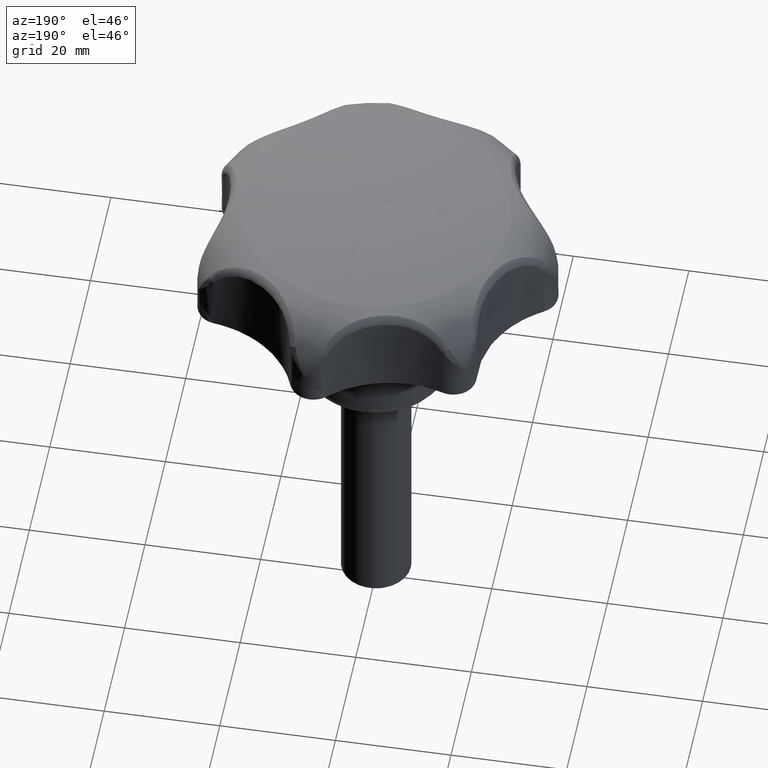
[diagram: clean part render]
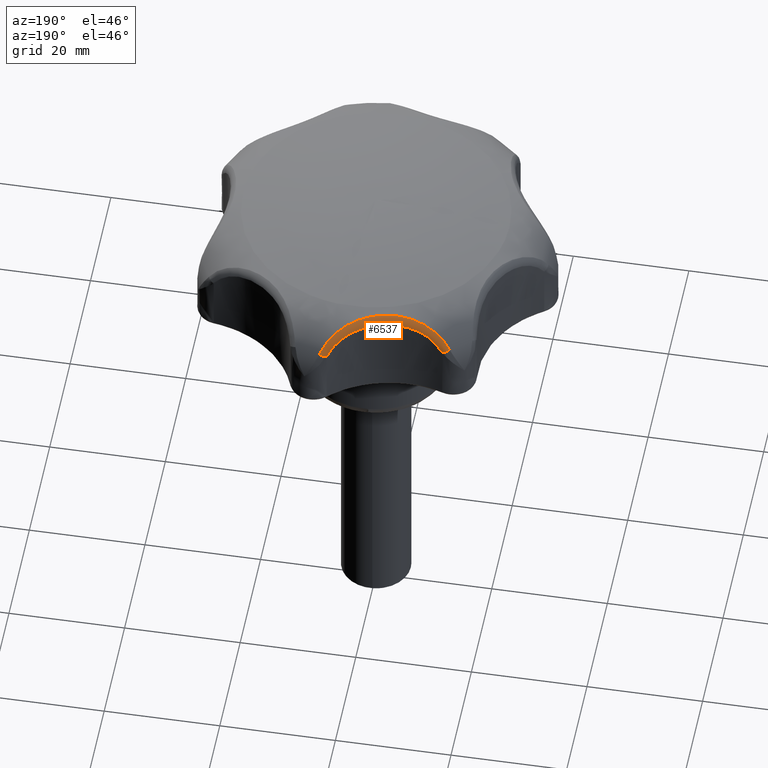
[diagram: same view with one face highlighted and labeled with its STEP entity id]
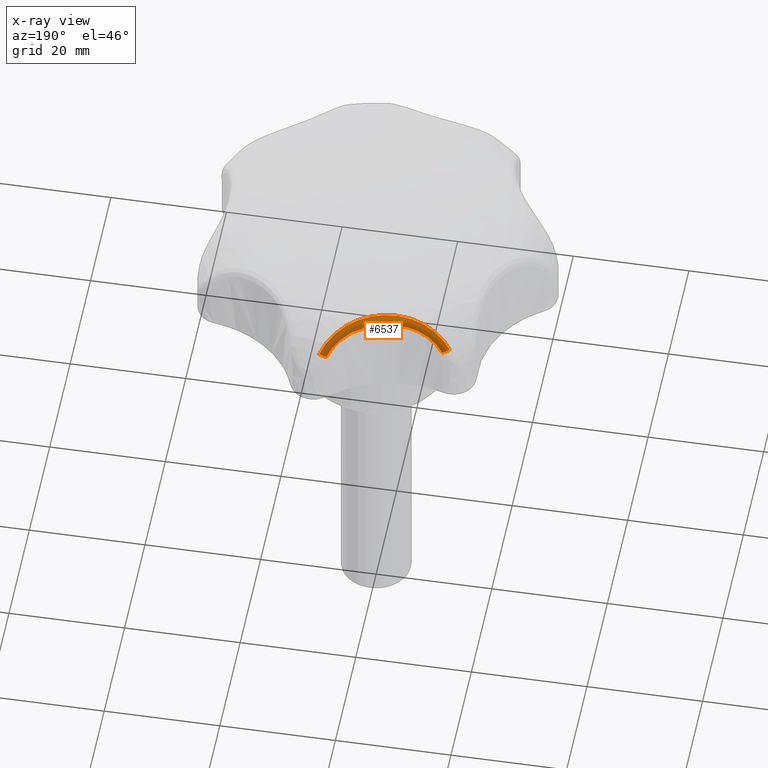
[diagram: x-ray of the same camera — body ghosted, the highlighted face saturated]
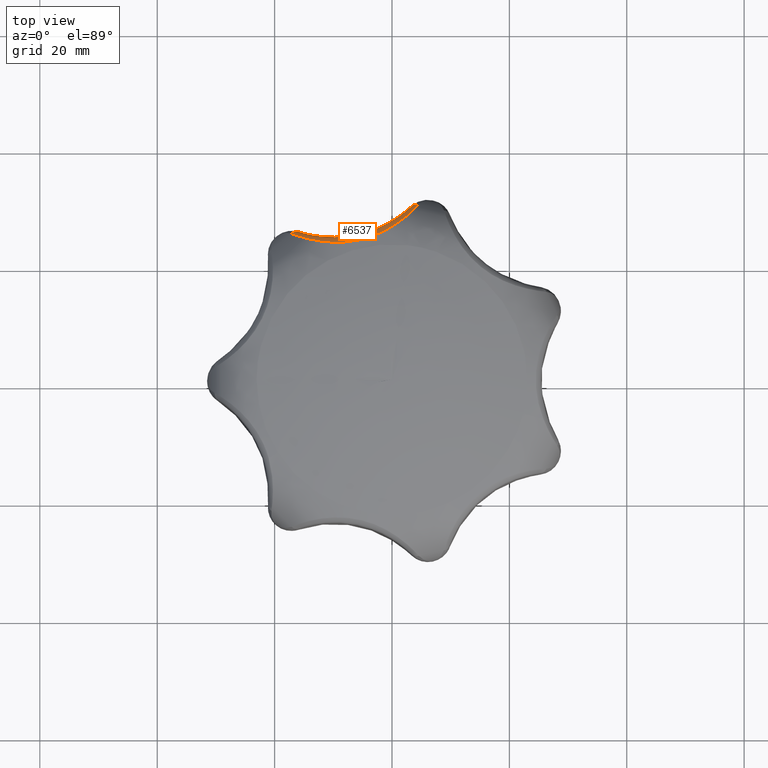
[diagram: same view with one face highlighted and labeled with its STEP entity id]
A machine part, auxiliary view. The second image highlights one B-rep face of the part: STEP entity #6537.
The next image is the same camera in x-ray: the body ghosted, the highlighted face saturated — about 0% of this face is hidden behind the body in this view.
A second angle (top view) of the same face is appended — the face is thin or edge-on in the first view.
In plain terms, the highlighted face is a freeform B-spline surface patch.
Its self-contained STEP definition (entity closure, byte-faithful):
#1885=CARTESIAN_POINT('',(4.580959115679450,29.922725782818549,31.738454685005049));
#1886=VERTEX_POINT('',#1885);
#1910=CARTESIAN_POINT('',(-17.110286079850251,24.971841096677949,31.738453637142751));
#1911=VERTEX_POINT('',#1910);
#1912=CARTESIAN_POINT('',(4.580959115679450,29.922725782818549,31.738454685005049));
#1913=CARTESIAN_POINT('',(4.373405402721688,29.701180805645631,32.222791186861450));
#1914=CARTESIAN_POINT('',(4.135369915467874,29.455164578822579,32.672248195697001));
#1915=CARTESIAN_POINT('',(3.730130535677279,29.057374964603412,33.297505634319172));
#1916=CARTESIAN_POINT('',(3.586980716047909,28.919962316116099,33.497731366012033));
#1917=CARTESIAN_POINT('',(3.359514040131987,28.707498492574469,33.785921638137019));
#1918=CARTESIAN_POINT('',(3.281565974815213,28.635619395591888,33.879958723523409));
#1919=CARTESIAN_POINT('',(3.121285693640851,28.489891093219079,34.063986325178867));
#1920=CARTESIAN_POINT('',(3.038763641992875,28.415874986114421,34.154170398397703));
#1921=CARTESIAN_POINT('',(2.617268148520599,28.043395005293089,34.592454043517151));
#1922=CARTESIAN_POINT('',(2.253777373764355,27.739503832393510,34.901046276151902));
#1923=CARTESIAN_POINT('',(1.668117147017713,27.283574026846729,35.308920943269882));
#1924=CARTESIAN_POINT('',(1.466142646941343,27.131574059072271,35.435678615033233));
#1925=CARTESIAN_POINT('',(1.152788991889443,26.904620916285172,35.612817278312427));
#1926=CARTESIAN_POINT('',(1.046604916147954,26.829144536971121,35.669696219714787));
#1927=CARTESIAN_POINT('',(0.830717300506641,26.678725681206821,35.779243834940353));
#1928=CARTESIAN_POINT('',(0.721153329417515,26.603887661086180,35.831828681925209));
#1929=CARTESIAN_POINT('',(0.168985444958212,26.234472396862611,36.082640269269177));
#1930=CARTESIAN_POINT('',(-0.289949687678607,25.951892884071128,36.246453567904183));
#1931=CARTESIAN_POINT('',(-1.242054079008384,25.420322161726350,36.516099519509332));
#1932=CARTESIAN_POINT('',(-1.735222513119557,25.171319648016180,36.621912962572253));
#1933=CARTESIAN_POINT('',(-2.373709359757937,24.885781192351011,36.724932639838343));
#1934=CARTESIAN_POINT('',(-2.502511055516082,24.829959328057878,36.744063499834219));
#1935=CARTESIAN_POINT('',(-2.762351594128752,24.721006157193059,36.779509378436110));
#1936=CARTESIAN_POINT('',(-2.893606196824412,24.667793820071399,36.795846152309238));
#1937=CARTESIAN_POINT('',(-3.288381105268650,24.513288646538221,36.840542370866103));
#1938=CARTESIAN_POINT('',(-3.553321668526895,24.416930742207850,36.864681754621941));
#1939=CARTESIAN_POINT('',(-4.353435038343453,24.147986924294049,36.921955817866099));
#1940=CARTESIAN_POINT('',(-4.893899452228997,23.995546152114080,36.940195020044719));
#1941=CARTESIAN_POINT('',(-5.989070642270838,23.745129053311469,36.940483492922837));
#1942=CARTESIAN_POINT('',(-6.543776936752050,23.647151422334321,36.922542590825422));
#1943=CARTESIAN_POINT('',(-7.246150055223709,23.558901338421830,36.874746929927582));
#1944=CARTESIAN_POINT('',(-7.387220563986161,23.542947735974241,36.863885538983162));
#1945=CARTESIAN_POINT('',(-7.669434590083734,23.514541590269960,36.839507358147671));
#1946=CARTESIAN_POINT('',(-7.810549142700126,23.502087317370449,36.825996332060733));
#1947=CARTESIAN_POINT('',(-8.233887707666996,23.469876842362169,36.781300146075402));
#1948=CARTESIAN_POINT('',(-8.516431892917257,23.455288693945882,36.745894102487910));
#1949=CARTESIAN_POINT('',(-9.357016033079200,23.431423994436301,36.622126246796427));
#1950=CARTESIAN_POINT('',(-9.910098760967422,23.441805347283491,36.516179241052328));
#1951=CARTESIAN_POINT('',(-10.999283489608491,23.507678273057032,36.246348998262157));
#1952=CARTESIAN_POINT('',(-11.535388985404170,23.563180844515450,36.082482091547952));
#1953=CARTESIAN_POINT('',(-12.192736236893641,23.656378877473500,35.831825685236240));
#1954=CARTESIAN_POINT('',(-12.323748287865699,23.676240144834171,35.779312690968332));
#1955=CARTESIAN_POINT('',(-12.583581274189781,23.718100742377612,35.669743338788066));
#1956=CARTESIAN_POINT('',(-12.711992762754130,23.740029948500180,35.612867212204897));
#1957=CARTESIAN_POINT('',(-13.092670526093620,23.808525043342762,35.435789017438672));
#1958=CARTESIAN_POINT('',(-13.340382830436679,23.857795921813342,35.309140680925069));
#1959=CARTESIAN_POINT('',(-14.064879643038241,24.014226442332301,34.901900000533949));
#1960=CARTESIAN_POINT('',(-14.523096907649460,24.129998646190629,34.594129191536112));
#1961=CARTESIAN_POINT('',(-15.062645434103720,24.282094450652639,34.157806179170983));
#1962=CARTESIAN_POINT('',(-15.169081764248659,24.312940989398200,34.067778743141950));
#1963=CARTESIAN_POINT('',(-15.377624771311620,24.374924546685449,33.883159173984737));
#1964=CARTESIAN_POINT('',(-15.479445970954400,24.405972891009920,33.788836782136549));
#1965=CARTESIAN_POINT('',(-15.777656833337019,24.499001685389061,33.499832461952053));
#1966=CARTESIAN_POINT('',(-15.966802457850450,24.560863063775979,33.299119791531162));
#1967=CARTESIAN_POINT('',(-16.505739952590289,24.743824338070080,32.672648444080977));
#1968=CARTESIAN_POINT('',(-16.827211453223981,24.862308573861512,32.222706658358668));
#1969=CARTESIAN_POINT('',(-17.110286079850251,24.971841096677949,31.738453637142751));
#1970=B_SPLINE_CURVE_WITH_KNOTS('',3,(#1912,#1913,#1914,#1915,#1916,#1917,#1918,#1919,#1920,#1921,#1922,#1923,#1924,#1925,#1926,#1927,#1928,#1929,#1930,#1931,#1932,#1933,#1934,#1935,#1936,#1937,#1938,#1939,#1940,#1941,#1942,#1943,#1944,#1945,#1946,#1947,#1948,#1949,#1950,#1951,#1952,#1953,#1954,#1955,#1956,#1957,#1958,#1959,#1960,#1961,#1962,#1963,#1964,#1965,#1966,#1967,#1968,#1969),.UNSPECIFIED.,.F.,.U.,(4,2,2,2,2,2,2,2,2,2,2,2,2,2,2,2,2,2,2,2,2,2,2,2,2,2,2,2,4),(0.0,0.062500000000002,0.093750000000003,0.109375000000003,0.125000000000003,0.187500000000004,0.218750000000004,0.234375000000004,0.250000000000004,0.312500000000004,0.375000000000004,0.390625000000004,0.406250000000004,0.437500000000004,0.500000000000003,0.562500000000003,0.578125000000003,0.593750000000002,0.625000000000002,0.687500000000002,0.750000000000002,0.765625000000001,0.781250000000001,0.812500000000001,0.875000000000001,0.890625000000001,0.906250000000001,0.937500000000000,1.0),.UNSPECIFIED.);
#1971=EDGE_CURVE('',#1886,#1911,#1970,.T.);
#6191=CARTESIAN_POINT('',(-15.883843407673851,25.296025679275999,31.049571760227249));
#6192=VERTEX_POINT('',#6191);
#6193=CARTESIAN_POINT('',(-17.110286079850258,24.971841096677959,31.738453637142761));
#6194=CARTESIAN_POINT('',(-16.539223188989013,25.513951511906193,31.497791159205448));
#6195=CARTESIAN_POINT('',(-15.883843407673851,25.296025679275999,31.049571760227249));
#6203=(BOUNDED_CURVE()B_SPLINE_CURVE(2,(#6193,#6194,#6195),.UNSPECIFIED.,.F.,.U.)CURVE()GEOMETRIC_REPRESENTATION_ITEM()QUASI_UNIFORM_CURVE()RATIONAL_B_SPLINE_CURVE((1.0,0.876621322523646,1.0))REPRESENTATION_ITEM(''));
#6204=EDGE_CURVE('',#1911,#6192,#6203,.T.);
#6239=CARTESIAN_POINT('',(3.376801863414312,29.722857864167878,30.938720916930468));
#6240=CARTESIAN_POINT('',(3.361438112145495,29.707975671120316,30.974284759333639));
#6241=CARTESIAN_POINT('',(3.346074363821254,29.693093480925036,31.009848594920726));
#6242=CARTESIAN_POINT('',(3.138664037821187,29.492184181003136,31.489959735591430));
#6243=CARTESIAN_POINT('',(2.917026940001454,29.285281898693214,31.898247234499536));
#6244=CARTESIAN_POINT('',(2.538597126902710,28.952190825329374,32.460621337014153));
#6245=CARTESIAN_POINT('',(2.404750621971879,28.837344322357424,32.639698784648303));
#6246=CARTESIAN_POINT('',(2.120993805087760,28.601271648872643,32.981430634905443));
#6247=CARTESIAN_POINT('',(1.970248342320318,28.479403740421073,33.144845974673508));
#6248=CARTESIAN_POINT('',(1.499847860292878,28.111652569773149,33.603966943653766));
#6249=CARTESIAN_POINT('',(1.162711608891911,27.864002779892274,33.868943427878577));
#6250=CARTESIAN_POINT('',(0.622496918076531,27.496283808611459,34.214602342227700));
#6251=CARTESIAN_POINT('',(0.436663146484711,27.374321400678777,34.321154485937008));
#6252=CARTESIAN_POINT('',(0.053518614759187,27.132736627226933,34.518280543469359));
#6253=CARTESIAN_POINT('',(-0.143856631399803,27.013127052576689,34.608781335955854));
#6254=CARTESIAN_POINT('',(-1.143281627649571,26.432454593305479,35.018842092736875));
#6255=CARTESIAN_POINT('',(-1.994809253729029,26.015925920370432,35.220993508540538));
#6256=CARTESIAN_POINT('',(-3.341517642300987,25.482571225171867,35.414666141169022));
#6257=CARTESIAN_POINT('',(-3.801715693564263,25.320365067193094,35.460107039982816));
#6258=CARTESIAN_POINT('',(-4.725051155209408,25.034159902220946,35.519141806225015));
#6259=CARTESIAN_POINT('',(-5.190705940457502,24.909102393809810,35.533134622795558));
#6260=CARTESIAN_POINT('',(-6.129898317581181,24.694708889879539,35.533156569104051));
#6261=CARTESIAN_POINT('',(-6.603435194511769,24.605373486705403,35.519184319235656));
#6262=CARTESIAN_POINT('',(-7.558417105659056,24.462679688541872,35.460299416332219));
#6263=CARTESIAN_POINT('',(-8.042046041418670,24.409184058216230,35.415098199717100));
#6264=CARTESIAN_POINT('',(-9.489394031411365,24.304991701949767,35.221319218261513));
#6265=CARTESIAN_POINT('',(-10.438115329406839,24.310871931218259,35.018923475677120));
#6266=CARTESIAN_POINT('',(-11.590136158216771,24.400331370690193,34.609088170991022));
#6267=CARTESIAN_POINT('',(-11.819721465942152,24.422432389979100,34.518669673583652));
#6268=CARTESIAN_POINT('',(-12.269807397732292,24.473837796250329,34.321569797913341));
#6269=CARTESIAN_POINT('',(-12.490066389586946,24.503071780410146,34.215082545597333));
#6270=CARTESIAN_POINT('',(-13.135728713313584,24.599853235234544,33.869868665313348));
#6271=CARTESIAN_POINT('',(-13.546078641405000,24.676514105394073,33.605511602138307));
#6272=CARTESIAN_POINT('',(-14.127672011772026,24.803239545670458,33.148340252644509));
#6273=CARTESIAN_POINT('',(-14.316746035770574,24.847664046728251,32.984896835061434));
#6274=CARTESIAN_POINT('',(-14.676382541679482,24.937565709669709,32.642059109458302));
#6275=CARTESIAN_POINT('',(-14.847402533923439,24.983107820560321,32.462473825176758));
#6276=CARTESIAN_POINT('',(-15.334239271580174,25.119363633817610,31.898802654407550));
#6277=CARTESIAN_POINT('',(-15.624024914896099,25.209726427608203,31.489948068913204));
#6278=CARTESIAN_POINT('',(-15.898059542862216,25.300745192382777,31.009848935642783));
#6279=CARTESIAN_POINT('',(-15.918358470791340,25.307487345226999,30.974285920204064));
#6280=CARTESIAN_POINT('',(-15.938657402613345,25.314229499364227,30.938722897945233));
#6281=CARTESIAN_POINT('',(3.379117594736117,29.725117606943247,30.940748730877164));
#6282=CARTESIAN_POINT('',(3.363748568658578,29.710225274614320,30.976329523508806));
#6283=CARTESIAN_POINT('',(3.348379544054800,29.695332943713449,31.011910312728595));
#6284=CARTESIAN_POINT('',(3.140897844320635,29.494286604861347,31.492250660637485));
#6285=CARTESIAN_POINT('',(2.919184132105321,29.287246911867928,31.900733700360306));
#6286=CARTESIAN_POINT('',(2.540624085457175,28.953943457273173,32.463380412864019));
#6287=CARTESIAN_POINT('',(2.406731686402144,28.839025201642755,32.642545134219610));
#6288=CARTESIAN_POINT('',(2.122878251376964,28.602808481711516,32.984444970541269));
#6289=CARTESIAN_POINT('',(1.972081820492832,28.480867955637542,33.147941366436193));
#6290=CARTESIAN_POINT('',(1.501524321188250,28.112903780882920,33.607292511756881));
#6291=CARTESIAN_POINT('',(1.164277957561752,27.865118384885214,33.872405672676372));
#6292=CARTESIAN_POINT('',(0.623894215335337,27.497210946787259,34.218249582563814));
#6293=CARTESIAN_POINT('',(0.438003638399145,27.375188363393377,34.324859827721177));
#6294=CARTESIAN_POINT('',(0.054745214366752,27.133488952595577,34.522095701005831));
#6295=CARTESIAN_POINT('',(-0.142687094897773,27.013824945353978,34.612648175665591));
#6296=CARTESIAN_POINT('',(-1.142389965781312,26.432900867893693,35.022946973607120));
#6297=CARTESIAN_POINT('',(-1.994124485945396,26.016226796475134,35.225237247212505));
#6298=CARTESIAN_POINT('',(-3.341108594178330,25.482718587377995,35.419050955724948));
#6299=CARTESIAN_POINT('',(-3.801392966373362,25.320471833627494,35.464527170728914));
#6300=CARTESIAN_POINT('',(-4.724892539426112,25.034202376791459,35.523608338049883));
#6301=CARTESIAN_POINT('',(-5.190626019023181,24.909120640284666,35.537612719686898));
#6302=CARTESIAN_POINT('',(-6.129978054295770,24.694690685571477,35.537634683765823));
#6303=CARTESIAN_POINT('',(-6.603596296971525,24.605342968625980,35.523650886548744));
#6304=CARTESIAN_POINT('',(-7.558753730523423,24.462635874188972,35.464719696799222));
#6305=CARTESIAN_POINT('',(-8.042477729831704,24.409139327955675,35.419483336672762));
#6306=CARTESIAN_POINT('',(-9.490141185351879,24.304965597303564,35.225563172578028));
#6307=CARTESIAN_POINT('',(-10.439112206421781,24.310887117189232,35.023028415907611));
#6308=CARTESIAN_POINT('',(-11.591492417887302,24.400452626044359,34.612955187603738));
#6309=CARTESIAN_POINT('',(-11.821152701262490,24.422577904929927,34.522485051271545));
#6310=CARTESIAN_POINT('',(-12.271390993025399,24.474037170306527,34.325275367651393));
#6311=CARTESIAN_POINT('',(-12.491727237009398,24.503300704957539,34.218730046980617));
#6312=CARTESIAN_POINT('',(-13.137623399341075,24.600178488384266,33.873331396680747));
#6313=CARTESIAN_POINT('',(-13.548131027322812,24.676913581270870,33.608837970610551));
#6314=CARTESIAN_POINT('',(-14.129957506285521,24.803762307735148,33.151437387361561));
#6315=CARTESIAN_POINT('',(-14.319109086225302,24.848230148823351,32.987912882396081));
#6316=CARTESIAN_POINT('',(-14.678895759238008,24.938219986069942,32.644906610356649));
#6317=CARTESIAN_POINT('',(-14.849988479866679,24.983806969830734,32.465233800981039));
#6318=CARTESIAN_POINT('',(-15.337035274819881,25.120197964881573,31.901289382855438));
#6319=CARTESIAN_POINT('',(-15.626949715390529,25.210651435880187,31.492238988086989));
#6320=CARTESIAN_POINT('',(-15.901108104913106,25.301762698294130,31.011910653651164));
#6321=CARTESIAN_POINT('',(-15.921416186286319,25.308511698149072,30.976330685011234));
#6322=CARTESIAN_POINT('',(-15.941724269608105,25.315260698651567,30.940750712957389));
#6323=CARTESIAN_POINT('',(3.880756051529192,30.214627710256373,31.380017936807938));
#6324=CARTESIAN_POINT('',(3.864249601020215,30.197544064117039,31.419275138290995));
#6325=CARTESIAN_POINT('',(3.847742809659843,30.180460065207448,31.458533150419086));
#6326=CARTESIAN_POINT('',(3.624867747418677,29.949791533863191,31.988595698947879));
#6327=CARTESIAN_POINT('',(3.386770136668359,29.713176831429866,32.439692022724252));
#6328=CARTESIAN_POINT('',(2.980632103398300,29.334401215558152,33.062314956132425));
#6329=CARTESIAN_POINT('',(2.837046218348657,29.204135377700290,33.260811539294799));
#6330=CARTESIAN_POINT('',(2.532843575902891,28.937149755928338,33.640220141343143));
#6331=CARTESIAN_POINT('',(2.371333074424116,28.799709908575398,33.821982138333318));
#6332=CARTESIAN_POINT('',(1.867779490276558,28.386254944536475,34.333826910073981));
#6333=CARTESIAN_POINT('',(1.507432145381937,28.109524073511285,34.630910994319478));
#6334=CARTESIAN_POINT('',(0.931538155973954,27.701339624578271,35.021265105842630));
#6335=CARTESIAN_POINT('',(0.733669352995161,27.566410069235609,35.142128857583195));
#6336=CARTESIAN_POINT('',(0.326318672154420,27.300056429450983,35.366784968632153));
#6337=CARTESIAN_POINT('',(0.116772348495737,27.168651127542070,35.470499193595792));
#6338=CARTESIAN_POINT('',(-0.942535697781764,26.532927441112331,35.943001975110697));
#6339=CARTESIAN_POINT('',(-1.839254288226444,26.084274305330311,36.185020494755975));
#6340=CARTESIAN_POINT('',(-3.247646530429222,25.516388894458693,36.420922850130779));
#6341=CARTESIAN_POINT('',(-3.727445301008483,25.344935618472476,36.477327946409964));
#6342=CARTESIAN_POINT('',(-4.688409385656716,25.043971936007161,36.550953561827534));
#6343=CARTESIAN_POINT('',(-5.172224924702030,24.913321704834580,36.568648811246774));
#6344=CARTESIAN_POINT('',(-6.148336646667805,24.690499323125668,36.568676432803109));
#6345=CARTESIAN_POINT('',(-6.640651524479291,24.598323495562521,36.551007441009205));
#6346=CARTESIAN_POINT('',(-7.635886752733931,24.452596409451989,36.477567015969804));
#6347=CARTESIAN_POINT('',(-8.141115234590473,24.398918805112856,36.421453633459876));
#6348=CARTESIAN_POINT('',(-9.659123213742351,24.299061571606913,36.185408219108602));
#6349=CARTESIAN_POINT('',(-10.662549988264114,24.314290866713076,35.943100527053552));
#6350=CARTESIAN_POINT('',(-11.892378184319311,24.427353086892257,35.470851564381505));
#6351=CARTESIAN_POINT('',(-12.138035822929156,24.454795689953489,35.367229989364830));
#6352=CARTESIAN_POINT('',(-12.620679370183549,24.518012446587250,35.142600631172648));
#6353=CARTESIAN_POINT('',(-12.857400072453647,24.553703581954732,35.021809339562914));
#6354=CARTESIAN_POINT('',(-13.552714181493931,24.671435457797880,34.631952007599601));
#6355=CARTESIAN_POINT('',(-13.996521655736652,24.764188219963952,34.335559215706169));
#6356=CARTESIAN_POINT('',(-14.627649146623046,24.917599513620495,33.825872634777234));
#6357=CARTESIAN_POINT('',(-14.833205013367708,24.971389085552886,33.644072232575887));
#6358=CARTESIAN_POINT('',(-15.224805991177355,25.080339071696542,33.263428421406218));
#6359=CARTESIAN_POINT('',(-15.411343514320412,25.135577722735135,33.064367095606670));
#6360=CARTESIAN_POINT('',(-15.943087869279946,25.301044860464653,32.440304576454274));
#6361=CARTESIAN_POINT('',(-16.260628382753296,25.411061005766992,31.988582794049275));
#6362=CARTESIAN_POINT('',(-16.561507612475413,25.522181502825870,31.458533531826237));
#6363=CARTESIAN_POINT('',(-16.583791666294932,25.530411433284016,31.419276430904759));
#6364=CARTESIAN_POINT('',(-16.606075259681912,25.538641193695540,31.380020141112499));
#6365=CARTESIAN_POINT('',(4.637251417760416,29.978256515989962,31.615828445138874));
#6366=CARTESIAN_POINT('',(4.619582926376670,29.959394596505245,31.657055553118759));
#6367=CARTESIAN_POINT('',(4.601914436592810,29.940532678728474,31.698282657365485));
#6368=CARTESIAN_POINT('',(4.363389967503419,29.685896941393395,32.254848231041919));
#6369=CARTESIAN_POINT('',(4.109123281055338,29.423620083395221,32.728151019828282));
#6370=CARTESIAN_POINT('',(3.676720085259820,29.001421648493334,33.380078632025928));
#6371=CARTESIAN_POINT('',(3.524040729852147,28.855860127552550,33.587672481160418));
#6372=CARTESIAN_POINT('',(3.201023013299609,28.556712568040890,33.983821909336754));
#6373=CARTESIAN_POINT('',(3.029739053412237,28.402313907502560,34.173259489974647));
#6374=CARTESIAN_POINT('',(2.496409131001753,27.936591691758743,34.705490083497367));
#6375=CARTESIAN_POINT('',(2.115651563059586,27.623210361596804,35.012660909231627));
#6376=CARTESIAN_POINT('',(1.508299088587441,27.158854631618663,35.413362808103649));
#6377=CARTESIAN_POINT('',(1.299799100323470,27.005006187576097,35.536882097653709));
#6378=CARTESIAN_POINT('',(0.870837253280803,26.700733067310090,35.765398108420698));
#6379=CARTESIAN_POINT('',(0.650308343166299,26.550327824077474,35.870310081798003));
#6380=CARTESIAN_POINT('',(-0.464149284624428,25.821719873940349,36.345664162169271));
#6381=CARTESIAN_POINT('',(-1.406416624584093,25.304219915954892,36.580009238587010));
#6382=CARTESIAN_POINT('',(-2.891366721719501,24.656351291243315,36.804525392065017));
#6383=CARTESIAN_POINT('',(-3.398057165358783,24.462233786470730,36.857203316363702));
#6384=CARTESIAN_POINT('',(-4.414966500781141,24.126461261460612,36.925639813522601));
#6385=CARTESIAN_POINT('',(-4.927971221668465,23.983511695650574,36.941861289473124));
#6386=CARTESIAN_POINT('',(-5.964899978986616,23.746799604407062,36.941886730976798));
#6387=CARTESIAN_POINT('',(-6.488831347215319,23.653035898323669,36.925689097900211));
#6388=CARTESIAN_POINT('',(-7.549495121226701,23.514361841432869,36.857426330403079));
#6389=CARTESIAN_POINT('',(-8.088684516921630,23.469382146350597,36.805026255975811));
#6390=CARTESIAN_POINT('',(-9.710549011273619,23.408388076193390,36.580386811857231));
#6391=CARTESIAN_POINT('',(-10.784947446608490,23.465932006087392,36.345758508098911));
#6392=CARTESIAN_POINT('',(-12.104733350271241,23.638727482756078,35.870665776870673));
#6393=CARTESIAN_POINT('',(-12.368518071969232,23.678514677527250,35.765849202784658));
#6394=CARTESIAN_POINT('',(-12.887089365416950,23.766520924250724,35.537363543015161));
#6395=CARTESIAN_POINT('',(-13.141589445825465,23.814639170137326,35.413919478687156));
#6396=CARTESIAN_POINT('',(-13.889567380060921,23.969294023599982,35.013733482318429));
#6397=CARTESIAN_POINT('',(-14.367593557081856,24.086161005820504,34.707280717025682));
#6398=CARTESIAN_POINT('',(-15.048069578368366,24.273639899030883,34.177310198194462));
#6399=CARTESIAN_POINT('',(-15.269819142607501,24.338491395653890,33.987840066805795));
#6400=CARTESIAN_POINT('',(-15.692457682726927,24.468346509846295,33.590408664421588));
#6401=CARTESIAN_POINT('',(-15.893876086533913,24.533455791258515,33.382226111611899));
#6402=CARTESIAN_POINT('',(-16.468242708600744,24.726728731042883,32.728794882806149));
#6403=CARTESIAN_POINT('',(-16.811515098008783,24.852867829664081,32.254834389880457));
#6404=CARTESIAN_POINT('',(-17.136892137947509,24.978791565263474,31.698283077694242));
#6405=CARTESIAN_POINT('',(-17.160994202303577,24.988119273143372,31.657056949549826));
#6406=CARTESIAN_POINT('',(-17.185096268843445,24.997446981868404,31.615830817670009));
#6407=CARTESIAN_POINT('',(4.640550235695770,29.977225781936767,31.616856734232162));
#6408=CARTESIAN_POINT('',(4.622876642743965,29.958356118825229,31.658092421502332));
#6409=CARTESIAN_POINT('',(4.605203052990896,29.939486459128929,31.699328101309323));
#6410=CARTESIAN_POINT('',(4.366609890799337,29.684746372970618,32.256009079974270));
#6411=CARTESIAN_POINT('',(4.112271259517092,29.422358209734998,32.729408109545453));
#6412=CARTESIAN_POINT('',(3.679749115499899,28.999972686287055,33.381461382207753));
#6413=CARTESIAN_POINT('',(3.527028321172276,28.854345553422853,33.589093929070756));
#6414=CARTESIAN_POINT('',(3.203924265105775,28.555060700268985,33.985313836795477));
#6415=CARTESIAN_POINT('',(3.032595190886484,28.400590020346318,34.174783316367332));
#6416=CARTESIAN_POINT('',(2.499127204071113,27.934647434761480,34.707097083226770));
#6417=CARTESIAN_POINT('',(2.118274069973724,27.621113484984743,35.014306929996884));
#6418=CARTESIAN_POINT('',(1.510773629213480,27.156527148812202,35.415045067838591));
#6419=CARTESIAN_POINT('',(1.302223688093348,27.002601839470636,35.538572724020739));
#6420=CARTESIAN_POINT('',(0.873160459346899,26.698176034880465,35.767098804221533));
#6421=CARTESIAN_POINT('',(0.652580132145074,26.547695011895804,35.872012471099730));
#6422=CARTESIAN_POINT('',(-0.462133111665247,25.818722469695857,36.347361193253121));
#6423=CARTESIAN_POINT('',(-1.404608765318336,25.300961815576649,36.581659011978687));
#6424=CARTESIAN_POINT('',(-2.889893742838497,24.652795610580437,36.806111332186120));
#6425=CARTESIAN_POINT('',(-3.396699208696417,24.458594703261852,36.858769414937569));
#6426=CARTESIAN_POINT('',(-4.413843478632187,24.122693071222688,36.927178639298781));
#6427=CARTESIAN_POINT('',(-4.926969081080842,23.979696808353442,36.943392530832355));
#6428=CARTESIAN_POINT('',(-5.964147363781281,23.742927735349713,36.943417961066977));
#6429=CARTESIAN_POINT('',(-6.488207827988276,23.649153641020423,36.927227900062746));
#6430=CARTESIAN_POINT('',(-7.549138961844704,23.510493862114885,36.858992343873567));
#6431=CARTESIAN_POINT('',(-8.088467756296664,23.465539228381051,36.806612033265843));
#6432=CARTESIAN_POINT('',(-9.710763801600606,23.404667996768076,36.582036520469714));
#6433=CARTESIAN_POINT('',(-10.785463291998335,23.462356588647310,36.347455514442153));
#6434=CARTESIAN_POINT('',(-12.105637549227692,23.635369549620375,35.872368168202129));
#6435=CARTESIAN_POINT('',(-12.369501423847939,23.675202676732560,35.767549910557328));
#6436=CARTESIAN_POINT('',(-12.888230322442046,23.763302503219059,35.539054198491961));
#6437=CARTESIAN_POINT('',(-13.142808725081521,23.811468305950754,35.415601778602337));
#6438=CARTESIAN_POINT('',(-13.891019799533209,23.966266580501141,35.015379620310881));
#6439=CARTESIAN_POINT('',(-14.369197973805603,24.083229395538030,34.708887942447873));
#6440=CARTESIAN_POINT('',(-15.049893304168029,24.270846491112529,34.178834685833436));
#6441=CARTESIAN_POINT('',(-15.271714897999066,24.335743387452602,33.989332688508902));
#6442=CARTESIAN_POINT('',(-15.694491381826337,24.465685108755714,33.591830618918408));
#6443=CARTESIAN_POINT('',(-15.895975817491326,24.530835669566311,33.383609268841965));
#6444=CARTESIAN_POINT('',(-16.470531307021137,24.724225890188769,32.730052109075409));
#6445=CARTESIAN_POINT('',(-16.813916938843132,24.850434132995247,32.255995234637410));
#6446=CARTESIAN_POINT('',(-17.139401141111499,24.976422076665383,31.699328521814699));
#6447=CARTESIAN_POINT('',(-17.163511159256380,24.985754546833668,31.658093818399671));
#6448=CARTESIAN_POINT('',(-17.187621181767618,24.995087018692093,31.616859107516966));
#6456=(BOUNDED_SURFACE()B_SPLINE_SURFACE(3,2,((#6239,#6281,#6323,#6365,#6407),(#6240,#6282,#6324,#6366,#6408),(#6241,#6283,#6325,#6367,#6409),(#6242,#6284,#6326,#6368,#6410),(#6243,#6285,#6327,#6369,#6411),(#6244,#6286,#6328,#6370,#6412),(#6245,#6287,#6329,#6371,#6413),(#6246,#6288,#6330,#6372,#6414),(#6247,#6289,#6331,#6373,#6415),(#6248,#6290,#6332,#6374,#6416),(#6249,#6291,#6333,#6375,#6417),(#6250,#6292,#6334,#6376,#6418),(#6251,#6293,#6335,#6377,#6419),(#6252,#6294,#6336,#6378,#6420),(#6253,#6295,#6337,#6379,#6421),(#6254,#6296,#6338,#6380,#6422),(#6255,#6297,#6339,#6381,#6423),(#6256,#6298,#6340,#6382,#6424),(#6257,#6299,#6341,#6383,#6425),(#6258,#6300,#6342,#6384,#6426),(#6259,#6301,#6343,#6385,#6427),(#6260,#6302,#6344,#6386,#6428),(#6261,#6303,#6345,#6387,#6429),(#6262,#6304,#6346,#6388,#6430),(#6263,#6305,#6347,#6389,#6431),(#6264,#6306,#6348,#6390,#6432),(#6265,#6307,#6349,#6391,#6433),(#6266,#6308,#6350,#6392,#6434),(#6267,#6309,#6351,#6393,#6435),(#6268,#6310,#6352,#6394,#6436),(#6269,#6311,#6353,#6395,#6437),(#6270,#6312,#6354,#6396,#6438),(#6271,#6313,#6355,#6397,#6439),(#6272,#6314,#6356,#6398,#6440),(#6273,#6315,#6357,#6399,#6441),(#6274,#6316,#6358,#6400,#6442),(#6275,#6317,#6359,#6401,#6443),(#6276,#6318,#6360,#6402,#6444),(#6277,#6319,#6361,#6403,#6445),(#6278,#6320,#6362,#6404,#6446),(#6279,#6321,#6363,#6405,#6447),(#6280,#6322,#6364,#6406,#6448)),.UNSPECIFIED.,.F.,.F.,.U.)B_SPLINE_SURFACE_WITH_KNOTS((4,2,2,2,2,2,2,2,2,2,2,2,2,2,2,2,2,2,2,2,4),(3,1,1,3),(0.0,0.146011032679955,1.971149053539585,2.883718063969400,3.796287074399215,5.621425095258846,6.533994105688660,7.446563116118475,11.096839157837730,12.921977178697370,14.747115199556990,16.572253220416620,18.397391241276249,22.047667282995508,22.960236293425329,23.872805303855142,25.697943324714782,26.610512335144591,27.523081345574401,29.348219366434030,29.494230706221039),(0.0,0.009832745630110,1.864813444262826,1.874098195675809),.UNSPECIFIED.)GEOMETRIC_REPRESENTATION_ITEM()RATIONAL_B_SPLINE_SURFACE(((1.001307705209026,1.000653852604513,0.876648496081517,1.000617412381242,1.001234824762484),(1.001307801163077,1.000653900581539,0.876639445053463,1.000617457684433,1.001234915368867),(1.001307897117128,1.000653948558564,0.876630394025409,1.000617502987625,1.001235005975249),(1.001309192496894,1.000654596248447,0.876508205139720,1.000618114580743,1.001236229161485),(1.001313428834370,1.000656714417185,0.876108605447758,1.000620114700640,1.001240229401280),(1.001327044896472,1.000663522448236,0.874824247378298,1.000626543309525,1.001253086619049),(1.001332791870947,1.000666395935473,0.874282154298295,1.000629256652846,1.001258513305693),(1.001347074674026,1.000673537337013,0.872934904759321,1.000636000052964,1.001272000105927),(1.001355667931887,1.000677833965943,0.872124331188624,1.000640057224077,1.001280114448153),(1.001385569600800,1.000692784800400,0.869303805733287,1.000654174825260,1.001308349650521),(1.001410988338466,1.000705494169233,0.866906140344182,1.000666175881188,1.001332351762376),(1.001456144617054,1.000728072308527,0.862646698050332,1.000687495705640,1.001374991411280),(1.001472348629035,1.000736174314518,0.861118227234753,1.000695146174227,1.001390292348454),(1.001506608120862,1.000753304060431,0.857886642768250,1.000711321252741,1.001422642505481),(1.001524670516505,1.000762335258252,0.856182876772995,1.000719849127852,1.001439698255704),(1.001616532702513,1.000808266351256,0.847517820826803,1.000763220409558,1.001526440819117),(1.001696378687895,1.000848189343947,0.839986213312585,1.000800918431732,1.001601836863465),(1.001786093802133,1.000893046901066,0.831523683539741,1.000843276007379,1.001686552014758),(1.001810767099547,1.000905383549773,0.829196333062219,1.000854925115454,1.001709850230908),(1.001843954224978,1.000921977112489,0.826065901368285,1.000870593893094,1.001741187786188),(1.001852633849701,1.000926316924850,0.825247181097357,1.000874691840958,1.001749383681917),(1.001852647022956,1.000926323511478,0.825245938507852,1.000874698060503,1.001749396121005),(1.001843980996397,1.000921990498198,0.826063376108957,1.000870606532797,1.001741213065594),(1.001810872386178,1.000905436193089,0.829186401722781,1.000854974824876,1.001709949649751),(1.001786309551969,1.000893154775985,0.831503332571763,1.000843377870261,1.001686755740521),(1.001696498490019,1.000848249245010,0.839974912774687,1.000800974994415,1.001601949988831),(1.001616569528005,1.000808284764002,0.847514347200052,1.000763237796133,1.001526475592266),(1.001524734615549,1.000762367307774,0.856176830522345,1.000719879391204,1.001439758782408),(1.001506682040874,1.000753341020437,0.857879670138120,1.000711356152908,1.001422712305817),(1.001472414542515,1.000736207271257,0.861112009834404,1.000695177294237,1.001390354588473),(1.001456215647376,1.000728107823688,0.862639997995235,1.000687529241485,1.001375058482971),(1.001411092682743,1.000705546341371,0.866896297893922,1.000666225145692,1.001332450291384),(1.001385720274036,1.000692860137018,0.869289593225622,1.000654245963252,1.001308491926503),(1.001355870820456,1.000677935410228,0.872105193381455,1.000640153014713,1.001280306029427),(1.001347239514485,1.000673619757243,0.872919355904413,1.000636077879785,1.001272155759571),(1.001332870888443,1.000666435444221,0.874274700839438,1.000629293959710,1.001258587919421),(1.001327096907897,1.000663548453948,0.874819341312728,1.000626567865898,1.001253135731796),(1.001313428043891,1.000656714021945,0.876108680011041,1.000620114327428,1.001240228654855),(1.001309193237354,1.000654596618677,0.876508135294579,1.000618114930339,1.001236229860678),(1.001307897056280,1.000653948528140,0.876630399765015,1.000617502958896,1.001235005917792),(1.001307801042686,1.000653900521343,0.876639456409576,1.000617457627592,1.001234915255185),(1.001307705029091,1.000653852514546,0.876648513054138,1.000617412296289,1.001234824592578)))REPRESENTATION_ITEM('')SURFACE());
#6457=CARTESIAN_POINT('',(3.335314116605140,29.682672607399450,31.049572807807749));
#6458=VERTEX_POINT('',#6457);
#6459=CARTESIAN_POINT('',(4.580959115679449,29.922725782818521,31.738454685005021));
#6460=CARTESIAN_POINT('',(3.831236380180926,30.163375466287214,31.497792293176772));
#6461=CARTESIAN_POINT('',(3.335314116605140,29.682672607399450,31.049572807807749));
#6469=(BOUNDED_CURVE()B_SPLINE_CURVE(2,(#6459,#6460,#6461),.UNSPECIFIED.,.F.,.U.)CURVE()GEOMETRIC_REPRESENTATION_ITEM()QUASI_UNIFORM_CURVE()RATIONAL_B_SPLINE_CURVE((1.0,0.876621340306161,1.0))REPRESENTATION_ITEM(''));
#6470=EDGE_CURVE('',#1886,#6458,#6469,.T.);
#6471=ORIENTED_EDGE('',*,*,#6470,.T.);
#6472=CARTESIAN_POINT('',(-15.883843407673851,25.296025679275999,31.049571760227249));
#6473=CARTESIAN_POINT('',(-15.639692912170670,25.214841175926281,31.477337278991651));
#6474=CARTESIAN_POINT('',(-15.360437818193279,25.127407828025131,31.875114235755461));
#6475=CARTESIAN_POINT('',(-14.888636803336270,24.994351966220609,32.428310528959692));
#6476=CARTESIAN_POINT('',(-14.722511331141840,24.949684970063970,32.605433570855567));
#6477=CARTESIAN_POINT('',(-14.459704099893161,24.883219080969699,32.860168063637218));
#6478=CARTESIAN_POINT('',(-14.369823172143629,24.861152038328790,32.943259298651917));
#6479=CARTESIAN_POINT('',(-14.185469990777650,24.817383671513031,33.105744928294072));
#6480=CARTESIAN_POINT('',(-14.091714350289180,24.795852976486419,33.184508657998272));
#6481=CARTESIAN_POINT('',(-13.615254874395230,24.690350377198971,33.566387407403063));
#6482=CARTESIAN_POINT('',(-13.209567499684800,24.612856870194040,33.833788256188910));
#6483=CARTESIAN_POINT('',(-12.567458200658530,24.513942530958140,34.184891754988968));
#6484=CARTESIAN_POINT('',(-12.347813433697141,24.483853617671890,34.293572351382593));
#6485=CARTESIAN_POINT('',(-12.010264273229820,24.443887037609450,34.444835488960912));
#6486=CARTESIAN_POINT('',(-11.896185831183960,24.431404938590340,34.493381963819687));
#6487=CARTESIAN_POINT('',(-11.666426801705420,24.408404576566880,34.586263880231421));
#6488=CARTESIAN_POINT('',(-11.550999790501219,24.397907310454361,34.630508163838783));
#6489=CARTESIAN_POINT('',(-10.971306241291730,24.350571832187189,34.841480785322652));
#6490=CARTESIAN_POINT('',(-10.499412267963271,24.329208838553122,34.977659415696372));
#6491=CARTESIAN_POINT('',(-9.543085158658064,24.322539265528569,35.200170173425491));
#6492=CARTESIAN_POINT('',(-9.058647424905136,24.337215474730769,35.286482945953232));
#6493=CARTESIAN_POINT('',(-8.446906505080696,24.379801713087978,35.369979780002282));
#6494=CARTESIAN_POINT('',(-8.324116405207263,24.389542837820780,35.385463630962803));
#6495=CARTESIAN_POINT('',(-8.078535949655462,24.411439711155300,35.414028365683492));
#6496=CARTESIAN_POINT('',(-7.956004631139368,24.423569490108999,35.427082323303232));
#6497=CARTESIAN_POINT('',(-7.589182996755527,24.463478502178749,35.462813685078167));
#6498=CARTESIAN_POINT('',(-7.345664755707536,24.494776062772850,35.482074068231967));
#6499=CARTESIAN_POINT('',(-6.618172358000870,24.602598250362110,35.527703305362607));
#6500=CARTESIAN_POINT('',(-6.137256719675176,24.693031725822870,35.542119310071989));
#6501=CARTESIAN_POINT('',(-5.183537307578463,24.910736238938821,35.542100901632850));
#6502=CARTESIAN_POINT('',(-4.710733429535368,25.038006780804210,35.527668085853662));
#6503=CARTESIAN_POINT('',(-4.007668903409037,25.256842309481339,35.481923604935353));
#6504=CARTESIAN_POINT('',(-3.774338580493042,25.334447692142501,35.462609526001181));
#6505=CARTESIAN_POINT('',(-3.425896182750297,25.457933287273420,35.426757073743637));
#6506=CARTESIAN_POINT('',(-3.309832676870836,25.500342264773270,35.413632951084352));
#6507=CARTESIAN_POINT('',(-3.079279072586279,25.587137756807039,35.385045977485689));
#6508=CARTESIAN_POINT('',(-2.964787769171557,25.631519615087061,35.369587692517690));
#6509=CARTESIAN_POINT('',(-2.396280536668842,25.858221426987789,35.286154500793657));
#6510=CARTESIAN_POINT('',(-1.954075236500001,26.054936419547442,35.199927312952617));
#6511=CARTESIAN_POINT('',(-1.096064567068945,26.475572675329779,34.977540144329950));
#6512=CARTESIAN_POINT('',(-0.680261834248205,26.699511555828771,34.841402558471863));
#6513=CARTESIAN_POINT('',(-0.178303362280083,26.993819755911669,34.630307450626141));
#6514=CARTESIAN_POINT('',(-0.078803528157076,27.053398055692110,34.586029551323691));
#6515=CARTESIAN_POINT('',(0.118371142282447,27.173910002095820,34.493056469567982));
#6516=CARTESIAN_POINT('',(0.215630193553287,27.234592267899970,34.444550138633943));
#6517=CARTESIAN_POINT('',(0.502402781607718,27.417067067622149,34.293258417295419));
#6518=CARTESIAN_POINT('',(0.687347022118857,27.539553543393641,34.184499164348381));
#6519=CARTESIAN_POINT('',(1.223550062647631,27.907728245242168,33.832881945462972));
#6520=CARTESIAN_POINT('',(1.556214472300581,28.154175888130741,33.564777163320969));
#6521=CARTESIAN_POINT('',(1.940963728656563,28.457068791759511,33.181129974910718));
#6522=CARTESIAN_POINT('',(2.016452591705254,28.517467960497338,33.101840341263546));
#6523=CARTESIAN_POINT('',(2.162820161055970,28.636344155889560,32.939920730961013));
#6524=CARTESIAN_POINT('',(2.233887038168348,28.694966400217030,32.857115481983740));
#6525=CARTESIAN_POINT('',(2.440940759400819,28.868189294542031,32.603183619248682));
#6526=CARTESIAN_POINT('',(2.570788215820865,28.980146608770720,32.426546074540511));
#6527=CARTESIAN_POINT('',(2.937131749960782,29.303886906431231,31.874581356157890));
#6528=CARTESIAN_POINT('',(3.150569957105530,29.503598978453599,31.477328656358960));
#6529=CARTESIAN_POINT('',(3.335314116605140,29.682672607399450,31.049572807807749));
#6530=B_SPLINE_CURVE_WITH_KNOTS('',3,(#6472,#6473,#6474,#6475,#6476,#6477,#6478,#6479,#6480,#6481,#6482,#6483,#6484,#6485,#6486,#6487,#6488,#6489,#6490,#6491,#6492,#6493,#6494,#6495,#6496,#6497,#6498,#6499,#6500,#6501,#6502,#6503,#6504,#6505,#6506,#6507,#6508,#6509,#6510,#6511,#6512,#6513,#6514,#6515,#6516,#6517,#6518,#6519,#6520,#6521,#6522,#6523,#6524,#6525,#6526,#6527,#6528,#6529),.UNSPECIFIED.,.F.,.U.,(4,2,2,2,2,2,2,2,2,2,2,2,2,2,2,2,2,2,2,2,2,2,2,2,2,2,2,2,4),(0.0,0.062499999999999,0.093749999999998,0.109374999999998,0.124999999999997,0.187499999999996,0.218749999999996,0.234374999999996,0.249999999999996,0.312499999999995,0.374999999999995,0.390624999999996,0.406249999999996,0.437499999999996,0.499999999999997,0.562499999999998,0.593749999999998,0.609374999999998,0.624999999999998,0.687499999999999,0.750000000000000,0.765625000000000,0.781250000000000,0.812500000000000,0.874999999999999,0.890624999999999,0.906249999999999,0.937499999999999,1.0),.UNSPECIFIED.);
#6531=EDGE_CURVE('',#6192,#6458,#6530,.T.);
#6532=ORIENTED_EDGE('',*,*,#6531,.F.);
#6533=ORIENTED_EDGE('',*,*,#6204,.F.);
#6534=ORIENTED_EDGE('',*,*,#1971,.F.);
#6535=EDGE_LOOP('',(#6471,#6532,#6533,#6534));
#6536=FACE_OUTER_BOUND('',#6535,.T.);
#6537=ADVANCED_FACE('',(#6536),#6456,.T.);